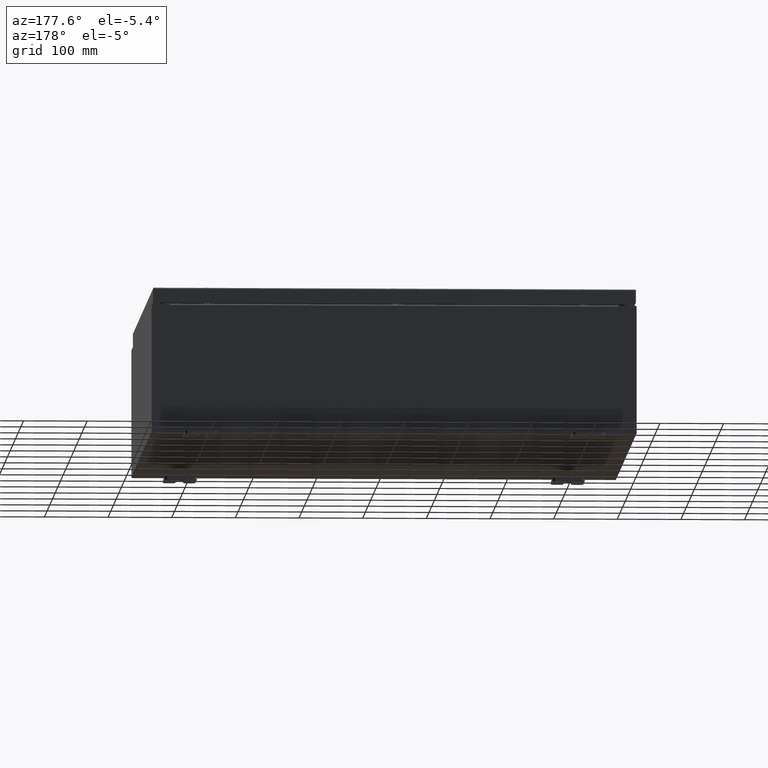
[diagram: clean part render]
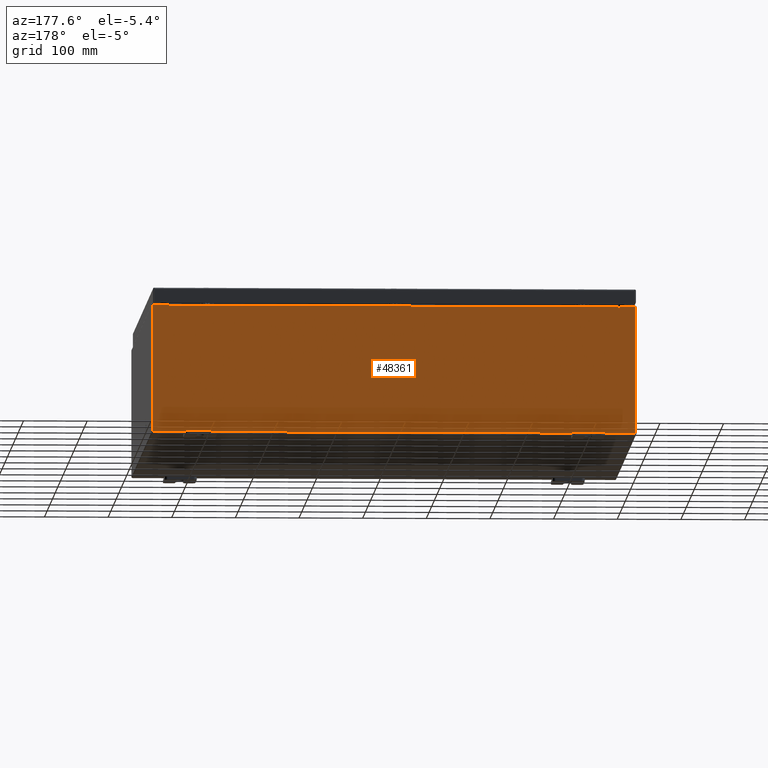
[diagram: same view with one face highlighted and labeled with its STEP entity id]
A machine part, auxiliary view. The second image highlights one B-rep face of the part: STEP entity #48361.
In plain terms, the highlighted planar face has unit normal (0, -1, 0).
Its self-contained STEP definition (entity closure, byte-faithful):
#800 = ORIENTED_EDGE ( 'NONE', *, *, #41900, .T. ) ;
#2023 = CARTESIAN_POINT ( 'NONE',  ( -14.92529999999999800, 0.0000000000000000000, 3.925299999999999600 ) ) ;
#2199 = DIRECTION ( 'NONE',  ( 0.0000000000000000000, 0.0000000000000000000, -1.000000000000000000 ) ) ;
#2554 = ORIENTED_EDGE ( 'NONE', *, *, #43468, .F. ) ;
#3002 = AXIS2_PLACEMENT_3D ( 'NONE', #34502, #4103, #39546 ) ;
#4103 = DIRECTION ( 'NONE',  ( -0.0000000000000000000, 1.000000000000000000, -0.0000000000000000000 ) ) ;
#4382 = EDGE_CURVE ( 'NONE', #39194, #7671, #37578, .T. ) ;
#4702 = DIRECTION ( 'NONE',  ( 0.0000000000000000000, -0.0000000000000000000, -1.000000000000000000 ) ) ;
#4960 = ORIENTED_EDGE ( 'NONE', *, *, #28042, .F. ) ;
#5884 = ORIENTED_EDGE ( 'NONE', *, *, #17183, .F. ) ;
#6615 = DIRECTION ( 'NONE',  ( -4.340572780400004900E-014, 0.0000000000000000000, -1.000000000000000000 ) ) ;
#7348 = VECTOR ( 'NONE', #13859, 39.37007874015748100 ) ;
#7355 = VERTEX_POINT ( 'NONE', #35465 ) ;
#7671 = VERTEX_POINT ( 'NONE', #63045 ) ;
#8380 = DIRECTION ( 'NONE',  ( -0.0000000000000000000, 1.000000000000000000, -0.0000000000000000000 ) ) ;
#8996 = LINE ( 'NONE', #32172, #34393 ) ;
#9054 = CARTESIAN_POINT ( 'NONE',  ( 13.92455000000000700, 0.0000000000000000000, 3.925299999999999600 ) ) ;
#10135 = CARTESIAN_POINT ( 'NONE',  ( 14.92530000000000200, 0.0000000000000000000, -3.925299999999999600 ) ) ;
#10432 = LINE ( 'NONE', #61536, #46061 ) ;
#11962 = DIRECTION ( 'NONE',  ( 0.0000000000000000000, 0.0000000000000000000, 1.000000000000000000 ) ) ;
#12525 = CARTESIAN_POINT ( 'NONE',  ( -13.92455000000000000, 0.0000000000000000000, 3.925299999999999600 ) ) ;
#13098 = CARTESIAN_POINT ( 'NONE',  ( -13.88720000000000200, -0.0000000000000000000, 0.0000000000000000000 ) ) ;
#13742 = VECTOR ( 'NONE', #11962, 39.37007874015748100 ) ;
#13859 = DIRECTION ( 'NONE',  ( 1.000000000000000000, 0.0000000000000000000, 0.0000000000000000000 ) ) ;
#14642 = DIRECTION ( 'NONE',  ( -1.000000000000000000, -0.0000000000000000000, -0.0000000000000000000 ) ) ;
#14722 = PLANE ( 'NONE',  #41556 ) ;
#15349 = LINE ( 'NONE', #42269, #13742 ) ;
#16241 = VECTOR ( 'NONE', #27602, 39.37007874015748100 ) ;
#16393 = VERTEX_POINT ( 'NONE', #53455 ) ;
#16516 = VERTEX_POINT ( 'NONE', #43866 ) ;
#17183 = EDGE_CURVE ( 'NONE', #16393, #46682, #40130, .T. ) ;
#17511 = VERTEX_POINT ( 'NONE', #50791 ) ;
#17836 = DIRECTION ( 'NONE',  ( 0.0000000000000000000, 0.0000000000000000000, 1.000000000000000000 ) ) ;
#21071 = DIRECTION ( 'NONE',  ( 0.0000000000000000000, 0.0000000000000000000, -1.000000000000000000 ) ) ;
#21951 = VERTEX_POINT ( 'NONE', #58241 ) ;
#22161 = CARTESIAN_POINT ( 'NONE',  ( -14.92529999999999800, 0.0000000000000000000, 3.925299999999999600 ) ) ;
#22493 = LINE ( 'NONE', #49248, #7348 ) ;
#23317 = ORIENTED_EDGE ( 'NONE', *, *, #34052, .T. ) ;
#27377 = EDGE_CURVE ( 'NONE', #46682, #65326, #53680, .T. ) ;
#27602 = DIRECTION ( 'NONE',  ( -0.0000000000000000000, -0.0000000000000000000, 1.000000000000000000 ) ) ;
#28042 = EDGE_CURVE ( 'NONE', #17511, #16393, #39320, .T. ) ;
#28832 = ORIENTED_EDGE ( 'NONE', *, *, #43675, .T. ) ;
#28892 = VECTOR ( 'NONE', #39936, 39.37007874015748100 ) ;
#29548 = EDGE_LOOP ( 'NONE', ( #59112, #5884, #4960, #61257, #2554, #61203, #48134, #23317, #38577, #40994, #800, #28832 ) ) ;
#29728 = LINE ( 'NONE', #2023, #16241 ) ;
#29827 = CARTESIAN_POINT ( 'NONE',  ( -13.88720000000000200, 1.024442997624098700E-016, 3.912299999999999700 ) ) ;
#31793 = CARTESIAN_POINT ( 'NONE',  ( -13.92455000000000000, 0.0000000000000000000, 3.874949999999999700 ) ) ;
#32172 = CARTESIAN_POINT ( 'NONE',  ( 13.92454999999983700, -0.0000000000000000000, -6.044052270931817700E-013 ) ) ;
#32454 = CARTESIAN_POINT ( 'NONE',  ( 13.92455000000000500, 0.0000000000000000000, 3.874949999999999700 ) ) ;
#33925 = VERTEX_POINT ( 'NONE', #9054 ) ;
#34052 = EDGE_CURVE ( 'NONE', #33925, #16516, #56414, .T. ) ;
#34393 = VECTOR ( 'NONE', #6615, 39.37007874015748100 ) ;
#34425 = VECTOR ( 'NONE', #14642, 39.37007874015748100 ) ;
#34502 = CARTESIAN_POINT ( 'NONE',  ( 13.90587500000000500, 0.0000000000000000000, 3.874949999999999700 ) ) ;
#34973 = CIRCLE ( 'NONE', #3002, 0.01867499999999949400 ) ;
#35087 = DIRECTION ( 'NONE',  ( 0.0000000000000000000, -1.000000000000000000, 0.0000000000000000000 ) ) ;
#35465 = CARTESIAN_POINT ( 'NONE',  ( -14.92529999999999800, 0.0000000000000000000, 3.925299999999999600 ) ) ;
#37578 = LINE ( 'NONE', #64975, #34425 ) ;
#38557 = AXIS2_PLACEMENT_3D ( 'NONE', #38735, #8380, #43813 ) ;
#38577 = ORIENTED_EDGE ( 'NONE', *, *, #56565, .T. ) ;
#38735 = CARTESIAN_POINT ( 'NONE',  ( -13.90587500000000200, 0.0000000000000000000, 3.874949999999999700 ) ) ;
#39194 = VERTEX_POINT ( 'NONE', #10135 ) ;
#39320 = LINE ( 'NONE', #13098, #52841 ) ;
#39546 = DIRECTION ( 'NONE',  ( 0.0000000000000000000, 0.0000000000000000000, -1.000000000000000000 ) ) ;
#39936 = DIRECTION ( 'NONE',  ( 1.000000000000000000, 0.0000000000000000000, 0.0000000000000000000 ) ) ;
#40130 = CIRCLE ( 'NONE', #38557, 0.01867499999999949400 ) ;
#40994 = ORIENTED_EDGE ( 'NONE', *, *, #4382, .T. ) ;
#41556 = AXIS2_PLACEMENT_3D ( 'NONE', #60287, #35087, #4702 ) ;
#41746 = VECTOR ( 'NONE', #17836, 39.37007874015748100 ) ;
#41900 = EDGE_CURVE ( 'NONE', #7671, #7355, #29728, .T. ) ;
#42269 = CARTESIAN_POINT ( 'NONE',  ( 13.88720000000000500, 0.0000000000000000000, 0.0000000000000000000 ) ) ;
#42276 = LINE ( 'NONE', #29827, #28892 ) ;
#42832 = EDGE_CURVE ( 'NONE', #33925, #51162, #8996, .T. ) ;
#42895 = VECTOR ( 'NONE', #52436, 39.37007874015748100 ) ;
#43468 = EDGE_CURVE ( 'NONE', #61852, #21951, #15349, .T. ) ;
#43675 = EDGE_CURVE ( 'NONE', #7355, #65326, #22493, .T. ) ;
#43813 = DIRECTION ( 'NONE',  ( 0.0000000000000000000, 0.0000000000000000000, -1.000000000000000000 ) ) ;
#43866 = CARTESIAN_POINT ( 'NONE',  ( 14.92530000000000200, 0.0000000000000000000, 3.925299999999999600 ) ) ;
#46061 = VECTOR ( 'NONE', #21071, 39.37007874015748100 ) ;
#46682 = VERTEX_POINT ( 'NONE', #31793 ) ;
#47669 = EDGE_CURVE ( 'NONE', #51162, #61852, #34973, .T. ) ;
#48118 = CARTESIAN_POINT ( 'NONE',  ( -13.92455000000000000, -0.0000000000000000000, 0.0000000000000000000 ) ) ;
#48134 = ORIENTED_EDGE ( 'NONE', *, *, #42832, .F. ) ;
#48361 = ADVANCED_FACE ( 'NONE', ( #60227 ), #14722, .F. ) ;
#49248 = CARTESIAN_POINT ( 'NONE',  ( -14.92529999999999800, 0.0000000000000000000, 3.925299999999999600 ) ) ;
#50677 = EDGE_CURVE ( 'NONE', #17511, #21951, #42276, .T. ) ;
#50791 = CARTESIAN_POINT ( 'NONE',  ( -13.88720000000000200, 1.024442997624098700E-016, 3.912299999999999700 ) ) ;
#51162 = VERTEX_POINT ( 'NONE', #32454 ) ;
#52436 = DIRECTION ( 'NONE',  ( 1.000000000000000000, 0.0000000000000000000, 0.0000000000000000000 ) ) ;
#52841 = VECTOR ( 'NONE', #2199, 39.37007874015748100 ) ;
#53455 = CARTESIAN_POINT ( 'NONE',  ( -13.88720000000000200, -0.0000000000000000000, 3.874949999999999700 ) ) ;
#53680 = LINE ( 'NONE', #48118, #41746 ) ;
#56414 = LINE ( 'NONE', #22161, #42895 ) ;
#56565 = EDGE_CURVE ( 'NONE', #16516, #39194, #10432, .T. ) ;
#58241 = CARTESIAN_POINT ( 'NONE',  ( 13.88720000000000500, 0.0000000000000000000, 3.912299999999999700 ) ) ;
#59035 = CARTESIAN_POINT ( 'NONE',  ( 13.88720000000000500, 0.0000000000000000000, 3.874949999999999700 ) ) ;
#59112 = ORIENTED_EDGE ( 'NONE', *, *, #27377, .F. ) ;
#60227 = FACE_OUTER_BOUND ( 'NONE', #29548, .T. ) ;
#60287 = CARTESIAN_POINT ( 'NONE',  ( 0.0000000000000000000, 0.0000000000000000000, 0.0000000000000000000 ) ) ;
#61203 = ORIENTED_EDGE ( 'NONE', *, *, #47669, .F. ) ;
#61257 = ORIENTED_EDGE ( 'NONE', *, *, #50677, .T. ) ;
#61536 = CARTESIAN_POINT ( 'NONE',  ( 14.92530000000000200, 0.0000000000000000000, 3.925299999999999600 ) ) ;
#61852 = VERTEX_POINT ( 'NONE', #59035 ) ;
#63045 = CARTESIAN_POINT ( 'NONE',  ( -14.92529999999999800, 0.0000000000000000000, -3.925299999999999600 ) ) ;
#64975 = CARTESIAN_POINT ( 'NONE',  ( -14.92529999999999800, 0.0000000000000000000, -3.925299999999999600 ) ) ;
#65326 = VERTEX_POINT ( 'NONE', #12525 ) ;